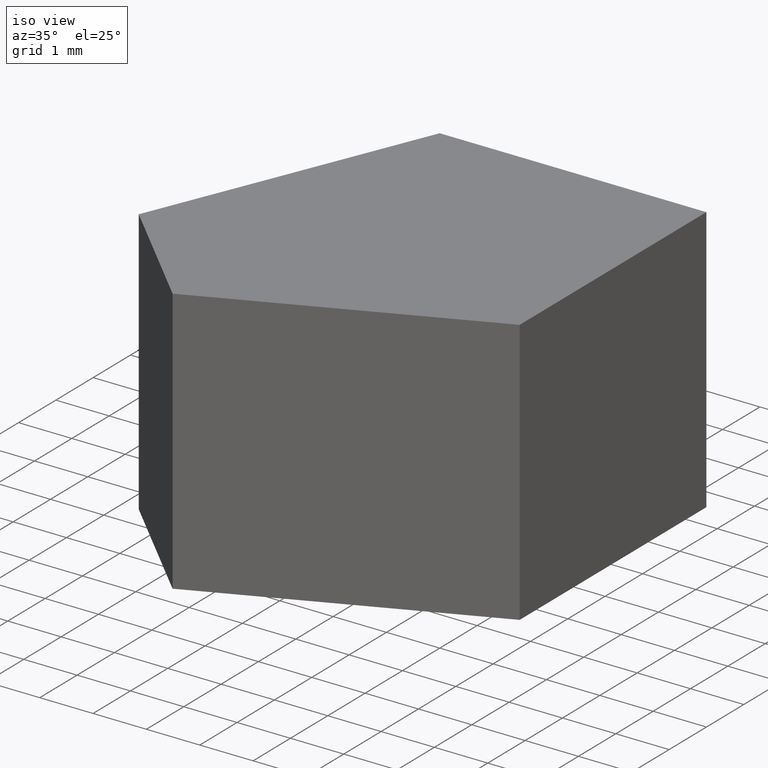
[diagram: clean part render]
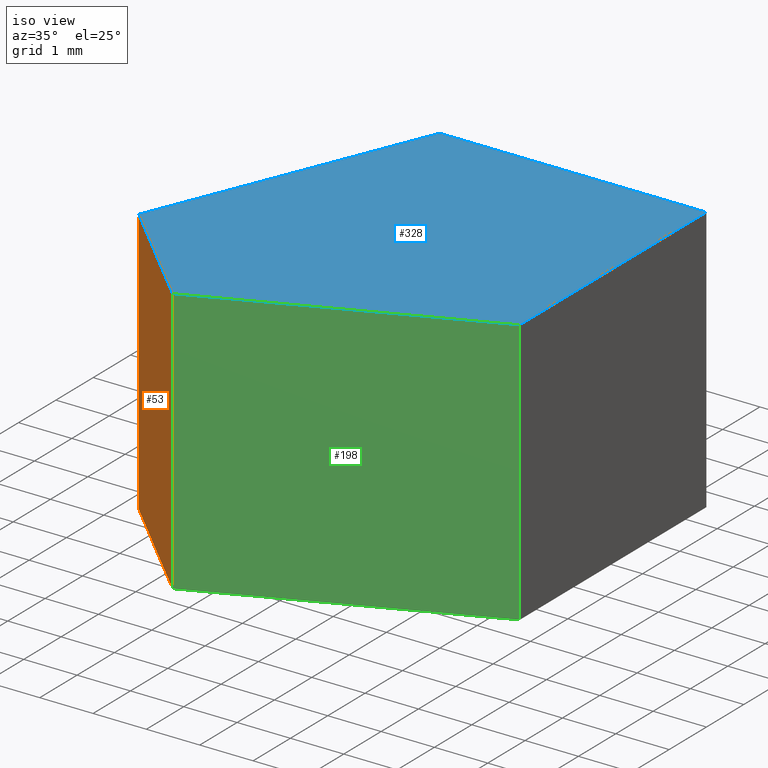
[diagram: same view with three faces highlighted in distinct colors, each labeled with its STEP entity id]
A machine part, iso view with three faces highlighted in distinct colors.
Their STEP definitions:

[orange] entity #53 — the highlighted planar face has unit normal (0.7045, 0.7097, -0).
#1 = EDGE_CURVE ( 'NONE', #88, #216, #329, .T. ) ;
#14 = VECTOR ( 'NONE', #20, 1000.000000000000000 ) ;
#15 = CARTESIAN_POINT ( 'NONE',  ( 11.60801107383556300, 9.117638843926226100, 5.000000000000000000 ) ) ;
#20 = DIRECTION ( 'NONE',  ( -0.0000000000000000000, -0.0000000000000000000, -1.000000000000000000 ) ) ;
#30 = ORIENTED_EDGE ( 'NONE', *, *, #111, .T. ) ;
#41 = VECTOR ( 'NONE', #78, 999.9999999999998900 ) ;
#44 = VECTOR ( 'NONE', #82, 999.9999999999998900 ) ;
#47 = LINE ( 'NONE', #183, #14 ) ;
#51 = LINE ( 'NONE', #341, #44 ) ;
#53 = ADVANCED_FACE ( 'NONE', ( #207 ), #102, .F. ) ;
#66 = AXIS2_PLACEMENT_3D ( 'NONE', #15, #129, #261 ) ;
#78 = DIRECTION ( 'NONE',  ( 0.7096581851591069500, -0.7045461377629449500, -0.0000000000000000000 ) ) ;
#80 = LINE ( 'NONE', #306, #41 ) ;
#82 = DIRECTION ( 'NONE',  ( 0.7096581851591069500, -0.7045461377629449500, -0.0000000000000000000 ) ) ;
#88 = VERTEX_POINT ( 'NONE', #104 ) ;
#102 = PLANE ( 'NONE',  #66 ) ;
#104 = CARTESIAN_POINT ( 'NONE',  ( 11.60801107383556300, 9.117638843926226100, 5.000000000000000000 ) ) ;
#111 = EDGE_CURVE ( 'NONE', #347, #119, #47, .T. ) ;
#119 = VERTEX_POINT ( 'NONE', #125 ) ;
#125 = CARTESIAN_POINT ( 'NONE',  ( 9.527288383901918700, 11.18337297566149500, 0.0000000000000000000 ) ) ;
#129 = DIRECTION ( 'NONE',  ( 0.7045461377629450600, 0.7096581851591070600, -0.0000000000000000000 ) ) ;
#144 = EDGE_LOOP ( 'NONE', ( #280, #179, #309, #30 ) ) ;
#163 = CARTESIAN_POINT ( 'NONE',  ( 9.527288383901918700, 11.18337297566149500, 5.000000000000000000 ) ) ;
#167 = EDGE_CURVE ( 'NONE', #119, #216, #80, .T. ) ;
#179 = ORIENTED_EDGE ( 'NONE', *, *, #1, .F. ) ;
#183 = CARTESIAN_POINT ( 'NONE',  ( 9.527288383901918700, 11.18337297566149500, 5.000000000000000000 ) ) ;
#207 = FACE_OUTER_BOUND ( 'NONE', #144, .T. ) ;
#216 = VERTEX_POINT ( 'NONE', #218 ) ;
#218 = CARTESIAN_POINT ( 'NONE',  ( 11.60801107383556300, 9.117638843926226100, 0.0000000000000000000 ) ) ;
#234 = CARTESIAN_POINT ( 'NONE',  ( 11.60801107383556300, 9.117638843926226100, 5.000000000000000000 ) ) ;
#255 = EDGE_CURVE ( 'NONE', #347, #88, #51, .T. ) ;
#261 = DIRECTION ( 'NONE',  ( -0.7096581851591069500, 0.7045461377629449500, 0.0000000000000000000 ) ) ;
#280 = ORIENTED_EDGE ( 'NONE', *, *, #167, .T. ) ;
#289 = VECTOR ( 'NONE', #307, 1000.000000000000000 ) ;
#306 = CARTESIAN_POINT ( 'NONE',  ( 11.60801107383556300, 9.117638843926226100, 0.0000000000000000000 ) ) ;
#307 = DIRECTION ( 'NONE',  ( -0.0000000000000000000, -0.0000000000000000000, -1.000000000000000000 ) ) ;
#309 = ORIENTED_EDGE ( 'NONE', *, *, #255, .F. ) ;
#329 = LINE ( 'NONE', #234, #289 ) ;
#341 = CARTESIAN_POINT ( 'NONE',  ( 11.60801107383556300, 9.117638843926226100, 5.000000000000000000 ) ) ;
#347 = VERTEX_POINT ( 'NONE', #163 ) ;

[blue] entity #328 — the highlighted planar face has unit normal (0, -0, 1).
#4 = ORIENTED_EDGE ( 'NONE', *, *, #114, .T. ) ;
#25 = DIRECTION ( 'NONE',  ( 1.000000000000000000, 0.0000000000000000000, -0.0000000000000000000 ) ) ;
#26 = EDGE_LOOP ( 'NONE', ( #4, #169, #293, #128, #305 ) ) ;
#37 = VECTOR ( 'NONE', #336, 1000.000000000000100 ) ;
#44 = VECTOR ( 'NONE', #82, 999.9999999999998900 ) ;
#45 = CARTESIAN_POINT ( 'NONE',  ( 11.62476252515132200, 16.24712349419276000, 5.000000000000000000 ) ) ;
#48 = DIRECTION ( 'NONE',  ( -1.000000000000000000, 0.0000000000000000000, 0.0000000000000000000 ) ) ;
#51 = LINE ( 'NONE', #341, #44 ) ;
#82 = DIRECTION ( 'NONE',  ( 0.7096581851591069500, -0.7045461377629449500, -0.0000000000000000000 ) ) ;
#84 = DIRECTION ( 'NONE',  ( -0.3826834323650836800, -0.9238795325112891800, 0.0000000000000000000 ) ) ;
#88 = VERTEX_POINT ( 'NONE', #104 ) ;
#92 = VECTOR ( 'NONE', #127, 1000.000000000000000 ) ;
#99 = VECTOR ( 'NONE', #84, 1000.000000000000200 ) ;
#100 = CARTESIAN_POINT ( 'NONE',  ( 11.60801107383556300, 9.117638843926226100, 5.000000000000000000 ) ) ;
#104 = CARTESIAN_POINT ( 'NONE',  ( 11.60801107383556300, 9.117638843926226100, 5.000000000000000000 ) ) ;
#113 = VERTEX_POINT ( 'NONE', #45 ) ;
#114 = EDGE_CURVE ( 'NONE', #88, #238, #215, .T. ) ;
#127 = DIRECTION ( 'NONE',  ( 0.0000000000000000000, 1.000000000000000000, 0.0000000000000000000 ) ) ;
#128 = ORIENTED_EDGE ( 'NONE', *, *, #310, .T. ) ;
#135 = PLANE ( 'NONE',  #244 ) ;
#140 = CARTESIAN_POINT ( 'NONE',  ( 0.0000000000000000000, 0.0000000000000000000, 5.000000000000000000 ) ) ;
#150 = EDGE_CURVE ( 'NONE', #238, #275, #256, .T. ) ;
#151 = EDGE_CURVE ( 'NONE', #275, #113, #185, .T. ) ;
#162 = CARTESIAN_POINT ( 'NONE',  ( 16.62476252515132200, 11.24712349419276000, 5.000000000000000000 ) ) ;
#163 = CARTESIAN_POINT ( 'NONE',  ( 9.527288383901918700, 11.18337297566149500, 5.000000000000000000 ) ) ;
#169 = ORIENTED_EDGE ( 'NONE', *, *, #150, .T. ) ;
#184 = CARTESIAN_POINT ( 'NONE',  ( 16.62476252515132200, 16.24712349419276000, 5.000000000000000000 ) ) ;
#185 = LINE ( 'NONE', #184, #226 ) ;
#215 = LINE ( 'NONE', #100, #37 ) ;
#226 = VECTOR ( 'NONE', #48, 1000.000000000000000 ) ;
#238 = VERTEX_POINT ( 'NONE', #320 ) ;
#244 = AXIS2_PLACEMENT_3D ( 'NONE', #140, #286, #25 ) ;
#245 = FACE_OUTER_BOUND ( 'NONE', #26, .T. ) ;
#255 = EDGE_CURVE ( 'NONE', #347, #88, #51, .T. ) ;
#256 = LINE ( 'NONE', #162, #92 ) ;
#265 = CARTESIAN_POINT ( 'NONE',  ( 16.62476252515132200, 16.24712349419276000, 5.000000000000000000 ) ) ;
#275 = VERTEX_POINT ( 'NONE', #265 ) ;
#286 = DIRECTION ( 'NONE',  ( 0.0000000000000000000, -0.0000000000000000000, 1.000000000000000000 ) ) ;
#293 = ORIENTED_EDGE ( 'NONE', *, *, #151, .T. ) ;
#300 = LINE ( 'NONE', #318, #99 ) ;
#305 = ORIENTED_EDGE ( 'NONE', *, *, #255, .T. ) ;
#310 = EDGE_CURVE ( 'NONE', #113, #347, #300, .T. ) ;
#318 = CARTESIAN_POINT ( 'NONE',  ( 11.62476252515132200, 16.24712349419276000, 5.000000000000000000 ) ) ;
#320 = CARTESIAN_POINT ( 'NONE',  ( 16.62476252515132200, 11.24712349419276000, 5.000000000000000000 ) ) ;
#328 = ADVANCED_FACE ( 'NONE', ( #245 ), #135, .T. ) ;
#336 = DIRECTION ( 'NONE',  ( 0.9205048534524398200, 0.3907311284892748800, 0.0000000000000000000 ) ) ;
#341 = CARTESIAN_POINT ( 'NONE',  ( 11.60801107383556300, 9.117638843926226100, 5.000000000000000000 ) ) ;
#347 = VERTEX_POINT ( 'NONE', #163 ) ;

[green] entity #198 — the highlighted planar face has unit normal (-0.3907, 0.9205, 0).
#1 = EDGE_CURVE ( 'NONE', #88, #216, #329, .T. ) ;
#9 = EDGE_CURVE ( 'NONE', #216, #322, #197, .T. ) ;
#29 = PLANE ( 'NONE',  #161 ) ;
#37 = VECTOR ( 'NONE', #336, 1000.000000000000100 ) ;
#42 = ORIENTED_EDGE ( 'NONE', *, *, #114, .F. ) ;
#56 = DIRECTION ( 'NONE',  ( -0.9205048534524398200, -0.3907311284892749400, 0.0000000000000000000 ) ) ;
#83 = DIRECTION ( 'NONE',  ( -0.3907311284892749400, 0.9205048534524398200, 0.0000000000000000000 ) ) ;
#88 = VERTEX_POINT ( 'NONE', #104 ) ;
#100 = CARTESIAN_POINT ( 'NONE',  ( 11.60801107383556300, 9.117638843926226100, 5.000000000000000000 ) ) ;
#104 = CARTESIAN_POINT ( 'NONE',  ( 11.60801107383556300, 9.117638843926226100, 5.000000000000000000 ) ) ;
#106 = DIRECTION ( 'NONE',  ( -0.0000000000000000000, -0.0000000000000000000, -1.000000000000000000 ) ) ;
#108 = CARTESIAN_POINT ( 'NONE',  ( 16.62476252515132200, 11.24712349419276000, 0.0000000000000000000 ) ) ;
#114 = EDGE_CURVE ( 'NONE', #88, #238, #215, .T. ) ;
#117 = LINE ( 'NONE', #317, #123 ) ;
#123 = VECTOR ( 'NONE', #106, 1000.000000000000000 ) ;
#139 = ORIENTED_EDGE ( 'NONE', *, *, #236, .F. ) ;
#161 = AXIS2_PLACEMENT_3D ( 'NONE', #239, #83, #56 ) ;
#187 = VECTOR ( 'NONE', #209, 1000.000000000000100 ) ;
#194 = EDGE_LOOP ( 'NONE', ( #278, #139, #42, #242 ) ) ;
#197 = LINE ( 'NONE', #260, #187 ) ;
#198 = ADVANCED_FACE ( 'NONE', ( #203 ), #29, .F. ) ;
#203 = FACE_OUTER_BOUND ( 'NONE', #194, .T. ) ;
#209 = DIRECTION ( 'NONE',  ( 0.9205048534524398200, 0.3907311284892748800, 0.0000000000000000000 ) ) ;
#215 = LINE ( 'NONE', #100, #37 ) ;
#216 = VERTEX_POINT ( 'NONE', #218 ) ;
#218 = CARTESIAN_POINT ( 'NONE',  ( 11.60801107383556300, 9.117638843926226100, 0.0000000000000000000 ) ) ;
#234 = CARTESIAN_POINT ( 'NONE',  ( 11.60801107383556300, 9.117638843926226100, 5.000000000000000000 ) ) ;
#236 = EDGE_CURVE ( 'NONE', #238, #322, #117, .T. ) ;
#238 = VERTEX_POINT ( 'NONE', #320 ) ;
#239 = CARTESIAN_POINT ( 'NONE',  ( 11.60801107383556300, 9.117638843926226100, 5.000000000000000000 ) ) ;
#242 = ORIENTED_EDGE ( 'NONE', *, *, #1, .T. ) ;
#260 = CARTESIAN_POINT ( 'NONE',  ( 11.60801107383556300, 9.117638843926226100, 0.0000000000000000000 ) ) ;
#278 = ORIENTED_EDGE ( 'NONE', *, *, #9, .T. ) ;
#289 = VECTOR ( 'NONE', #307, 1000.000000000000000 ) ;
#307 = DIRECTION ( 'NONE',  ( -0.0000000000000000000, -0.0000000000000000000, -1.000000000000000000 ) ) ;
#317 = CARTESIAN_POINT ( 'NONE',  ( 16.62476252515132200, 11.24712349419276000, 5.000000000000000000 ) ) ;
#320 = CARTESIAN_POINT ( 'NONE',  ( 16.62476252515132200, 11.24712349419276000, 5.000000000000000000 ) ) ;
#322 = VERTEX_POINT ( 'NONE', #108 ) ;
#329 = LINE ( 'NONE', #234, #289 ) ;
#336 = DIRECTION ( 'NONE',  ( 0.9205048534524398200, 0.3907311284892748800, 0.0000000000000000000 ) ) ;